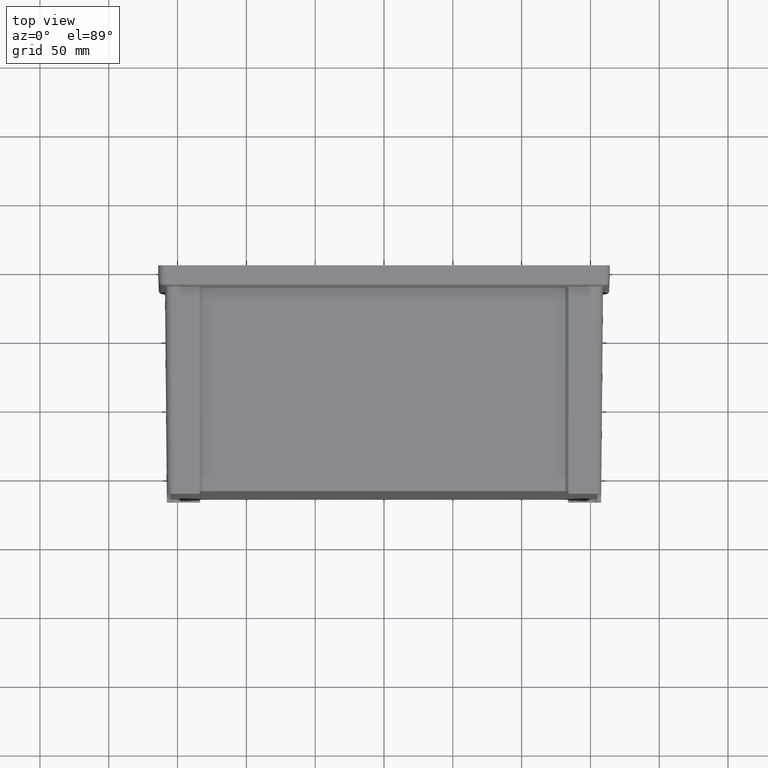
[diagram: clean part render]
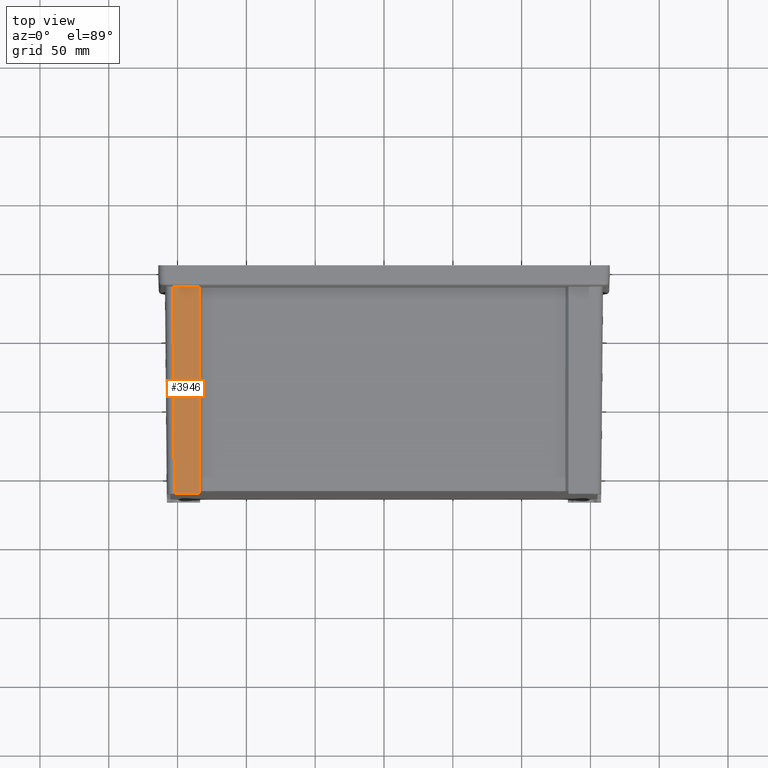
[diagram: same view with one face highlighted and labeled with its STEP entity id]
A machine part, top view. The second image highlights one B-rep face of the part: STEP entity #3946.
In plain terms, the highlighted planar face has unit normal (0, -0.0087, 1).
Its self-contained STEP definition (entity closure, byte-faithful):
#57 = CARTESIAN_POINT ( 'NONE',  ( -133.9749956692266400, -164.1872119834651200, 183.3004452842730500 ) ) ;
#232 = DIRECTION ( 'NONE',  ( 0.0000000000000000000, -0.008726535498373953800, 0.9999619230641713100 ) ) ;
#750 = ORIENTED_EDGE ( 'NONE', *, *, #12525, .T. ) ;
#780 = DIRECTION ( 'NONE',  ( 0.008726203243944175700, -0.9999238504775704900, -0.008726203243944238200 ) ) ;
#809 = VERTEX_POINT ( 'NONE', #5007 ) ;
#902 = CARTESIAN_POINT ( 'NONE',  ( -153.5871280626717800, -16.77196677786142900, 184.5869186395246700 ) ) ;
#1719 = LINE ( 'NONE', #57, #9726 ) ;
#2341 = CARTESIAN_POINT ( 'NONE',  ( -134.1108583804840500, -14.27348257502568000, 184.6087225808400900 ) ) ;
#2676 = EDGE_CURVE ( 'NONE', #4790, #13618, #1719, .T. ) ;
#2694 = VERTEX_POINT ( 'NONE', #10125 ) ;
#2771 = DIRECTION ( 'NONE',  ( 0.0000000000000000000, -0.9999619230641713100, -0.008726535498373953800 ) ) ;
#3833 = ORIENTED_EDGE ( 'NONE', *, *, #11809, .F. ) ;
#3946 = ADVANCED_FACE ( 'NONE', ( #15876 ), #6661, .T. ) ;
#4790 = VERTEX_POINT ( 'NONE', #16066 ) ;
#4976 = CARTESIAN_POINT ( 'NONE',  ( -153.5991877945093100, -15.39005838567739900, 184.5989783713622200 ) ) ;
#5007 = CARTESIAN_POINT ( 'NONE',  ( -151.2888624870207400, -15.44231971034376200, 184.5985222936912500 ) ) ;
#5197 = CARTESIAN_POINT ( 'NONE',  ( -151.2888624870207400, -15.44231971034376200, 184.5985222936912500 ) ) ;
#5202 = DIRECTION ( 'NONE',  ( 1.000000000000000000, 0.0000000000000000000, 0.0000000000000000000 ) ) ;
#6106 = DIRECTION ( 'NONE',  ( -0.0009171954542809241700, 0.9999615024563481800, 0.008726531827785091400 ) ) ;
#6205 = ORIENTED_EDGE ( 'NONE', *, *, #2676, .T. ) ;
#6661 = PLANE ( 'NONE',  #9933 ) ;
#7110 = EDGE_CURVE ( 'NONE', #11770, #4790, #8366, .T. ) ;
#7592 = ORIENTED_EDGE ( 'NONE', *, *, #7110, .T. ) ;
#7773 = CARTESIAN_POINT ( 'NONE',  ( -152.8262538122120900, -15.42489367527743300, 184.5986743683954500 ) ) ;
#8096 =( BOUNDED_CURVE ( )  B_SPLINE_CURVE ( 3, ( #5197, #14142, #7773, #4976 ),
 .UNSPECIFIED., .F., .F. ) 
 B_SPLINE_CURVE_WITH_KNOTS ( ( 4, 4 ),
 ( 4.405368760606515700, 4.467434366830056000 ),
 .UNSPECIFIED. ) 
 CURVE ( )  GEOMETRIC_REPRESENTATION_ITEM ( )  RATIONAL_B_SPLINE_CURVE ( ( 1.000000000000000000, 0.9996790141382971800, 0.9996790141382971800, 1.000000000000000000 ) ) 
 REPRESENTATION_ITEM ( '' )  );
#8213 = EDGE_CURVE ( 'NONE', #13618, #11575, #8524, .T. ) ;
#8366 = LINE ( 'NONE', #15635, #11376 ) ;
#8402 = EDGE_LOOP ( 'NONE', ( #3833, #750, #13055, #7592, #6205, #11780 ) ) ;
#8524 = LINE ( 'NONE', #2341, #13563 ) ;
#8853 = CARTESIAN_POINT ( 'NONE',  ( -133.9735246123037800, -164.0000000000000000, 183.3020790585015900 ) ) ;
#9029 = DIRECTION ( 'NONE',  ( 0.007857165312980548800, 0.9999310562397356600, 0.008726266127677982700 ) ) ;
#9726 = VECTOR ( 'NONE', #9029, 1000.000000000000100 ) ;
#9933 = AXIS2_PLACEMENT_3D ( 'NONE', #13079, #232, #2771 ) ;
#10040 = CARTESIAN_POINT ( 'NONE',  ( 164.0729938033534300, -15.44231971034376200, 184.5985222936912500 ) ) ;
#10125 = CARTESIAN_POINT ( 'NONE',  ( -153.5991877945093100, -15.39005838567739900, 184.5989783713622200 ) ) ;
#11376 = VECTOR ( 'NONE', #5202, 1000.000000000000000 ) ;
#11495 = DIRECTION ( 'NONE',  ( 1.000000000000000000, 0.0000000000000000000, 0.0000000000000000000 ) ) ;
#11575 = VERTEX_POINT ( 'NONE', #14777 ) ;
#11770 = VERTEX_POINT ( 'NONE', #12737 ) ;
#11780 = ORIENTED_EDGE ( 'NONE', *, *, #8213, .T. ) ;
#11809 = EDGE_CURVE ( 'NONE', #809, #11575, #16258, .T. ) ;
#12525 = EDGE_CURVE ( 'NONE', #809, #2694, #8096, .T. ) ;
#12717 = VECTOR ( 'NONE', #780, 1000.000000000000100 ) ;
#12737 = CARTESIAN_POINT ( 'NONE',  ( -152.2848347460672500, -166.0000000000000000, 183.2846253229200800 ) ) ;
#13055 = ORIENTED_EDGE ( 'NONE', *, *, #15606, .T. ) ;
#13079 = CARTESIAN_POINT ( 'NONE',  ( 164.0729938033534300, -14.00000000000000200, 184.6111092271154300 ) ) ;
#13563 = VECTOR ( 'NONE', #6106, 1000.000000000000100 ) ;
#13618 = VERTEX_POINT ( 'NONE', #8853 ) ;
#14142 = CARTESIAN_POINT ( 'NONE',  ( -152.0558981030914400, -15.44231971034377100, 184.5985222936912700 ) ) ;
#14669 = VECTOR ( 'NONE', #11495, 1000.000000000000000 ) ;
#14777 = CARTESIAN_POINT ( 'NONE',  ( -134.1097862871037600, -15.44231971034376200, 184.5985222936912500 ) ) ;
#15606 = EDGE_CURVE ( 'NONE', #2694, #11770, #16122, .T. ) ;
#15635 = CARTESIAN_POINT ( 'NONE',  ( -157.8020790585016200, -166.0000000000000000, 183.2846253229200800 ) ) ;
#15876 = FACE_OUTER_BOUND ( 'NONE', #8402, .T. ) ;
#16066 = CARTESIAN_POINT ( 'NONE',  ( -133.9892400264094800, -166.0000000000000000, 183.2846253229200800 ) ) ;
#16122 = LINE ( 'NONE', #902, #12717 ) ;
#16258 = LINE ( 'NONE', #10040, #14669 ) ;